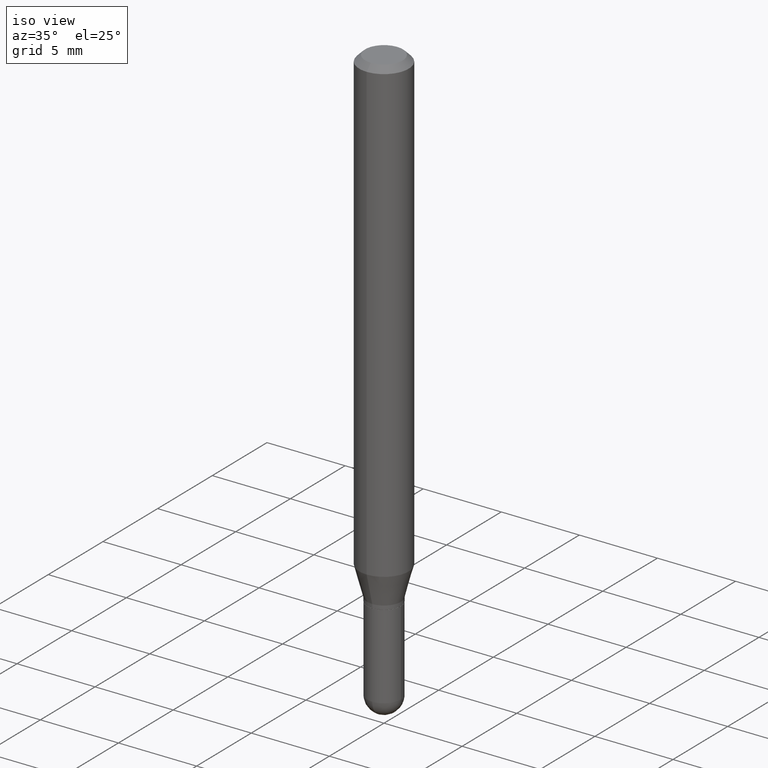
[diagram: clean part render]
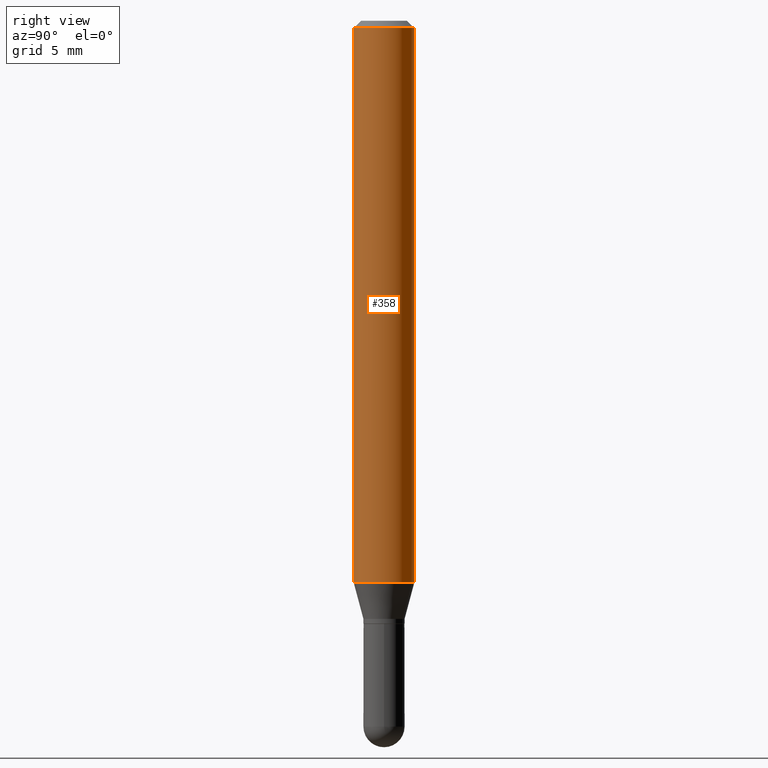
[diagram: tour spotlight — one face highlighted and labeled with its STEP entity id]
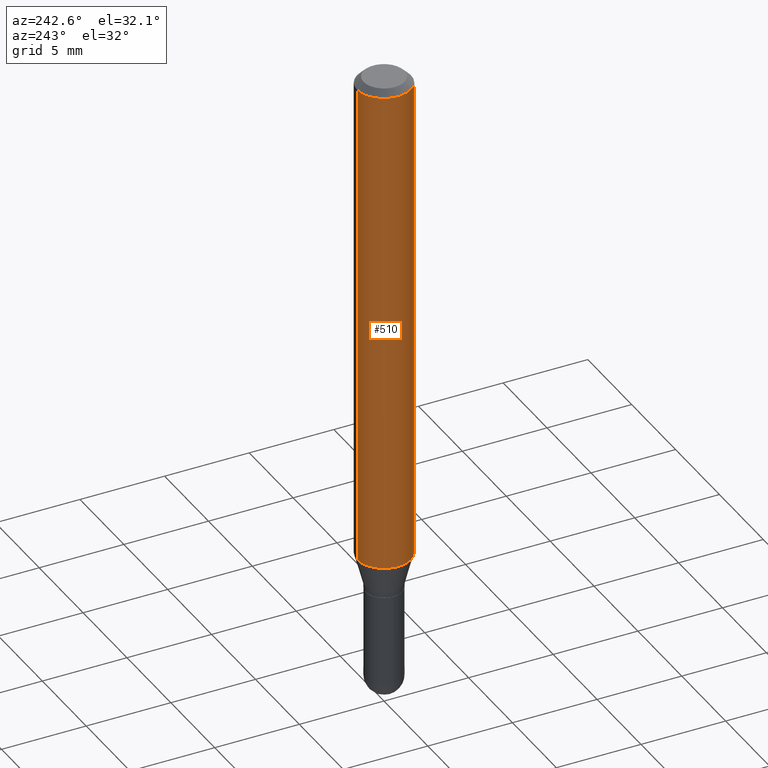
[diagram: tour spotlight — one face highlighted and labeled with its STEP entity id]
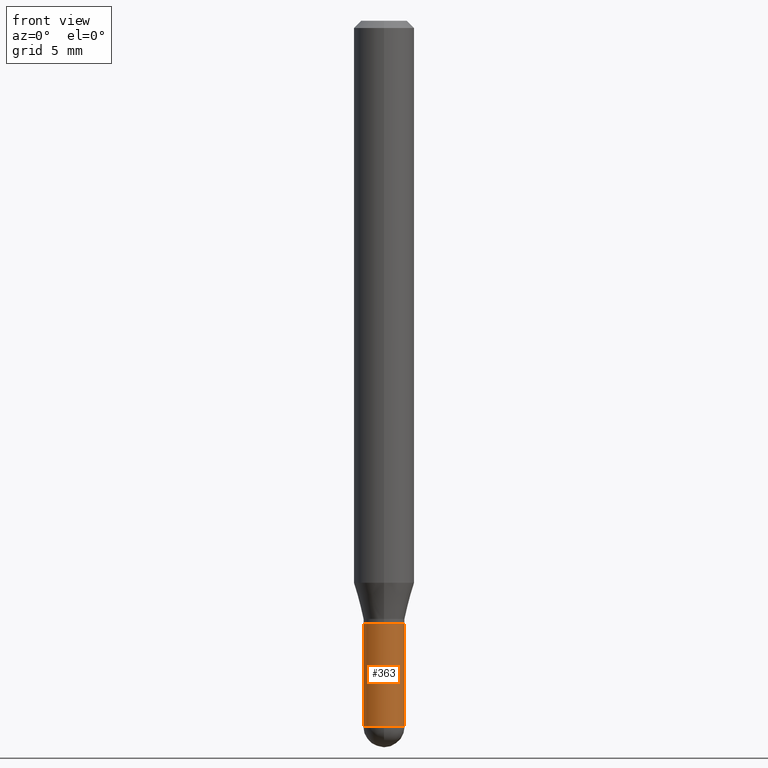
[diagram: tour spotlight — one face highlighted and labeled with its STEP entity id]
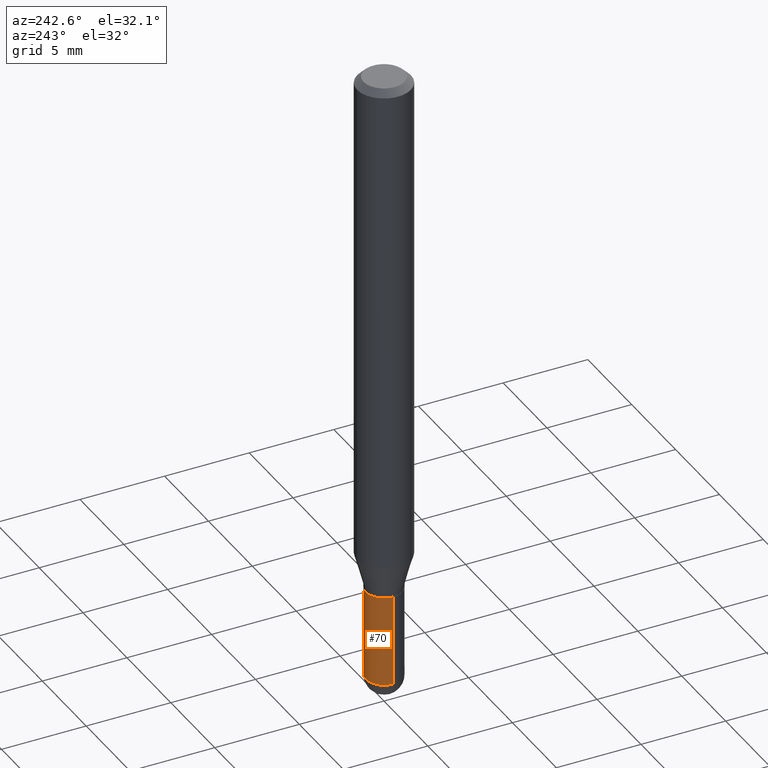
[diagram: tour spotlight — one face highlighted and labeled with its STEP entity id]
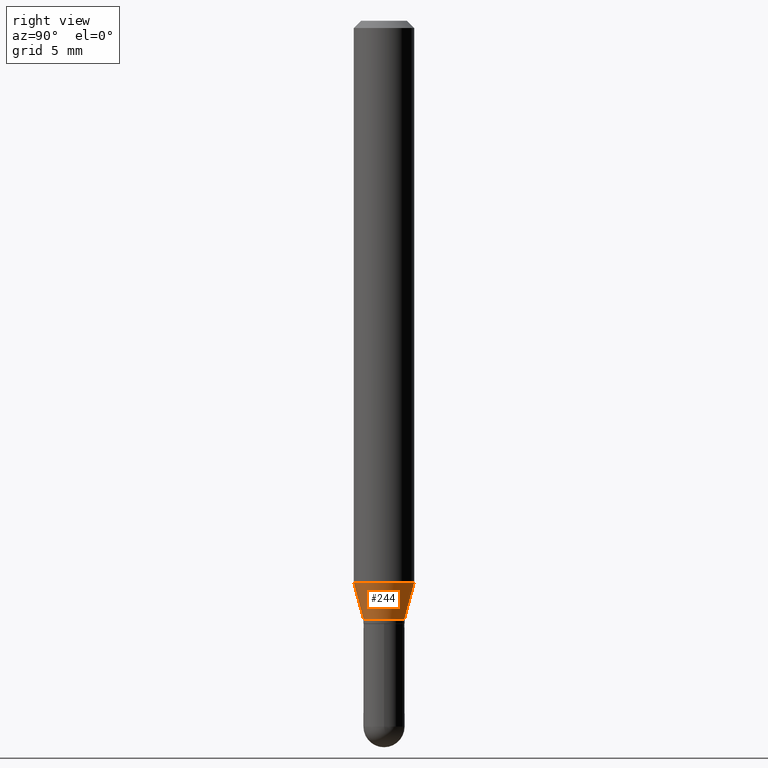
[diagram: tour spotlight — one face highlighted and labeled with its STEP entity id]
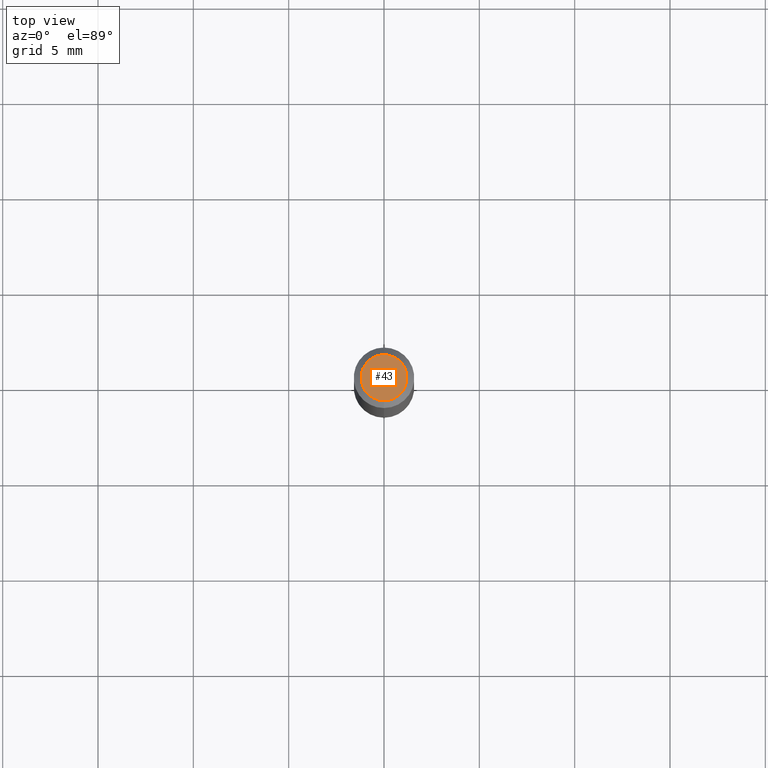
[diagram: tour spotlight — one face highlighted and labeled with its STEP entity id]
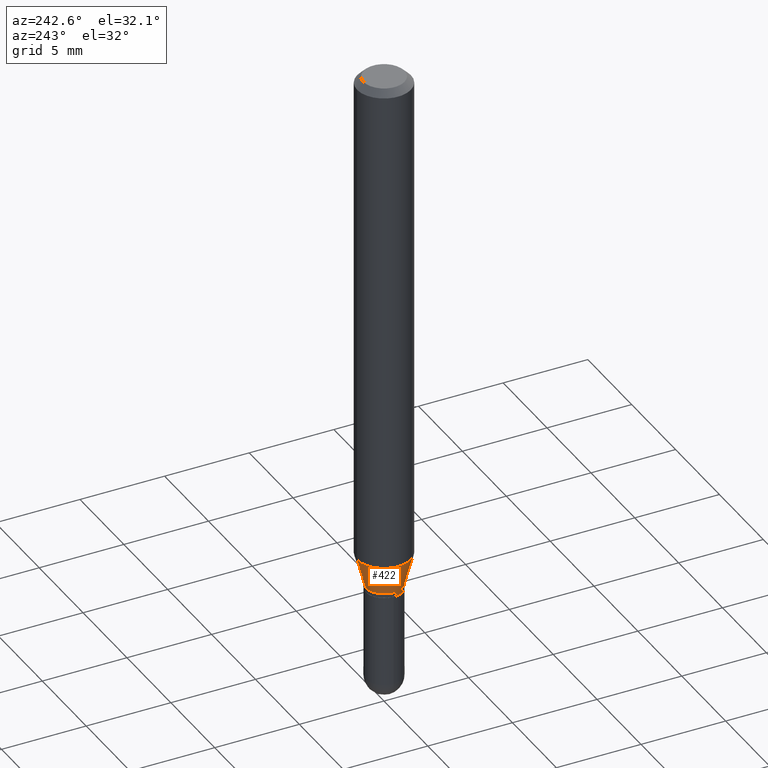
[diagram: tour spotlight — one face highlighted and labeled with its STEP entity id]
A machine part: a face-by-face anatomy tour. The part has 17 B-rep faces; the first image is the clean iso view, then the 7 largest visible faces are spotlighted one at a time (largest first), each with its STEP entity span.

Face 1 — right view, entity #358. In plain terms, the highlighted cylindrical surface (edge-blend (fillet) strip) has radius 1.5875 mm, axis along (-0, 0, 1).
Definition (entity closure, byte-faithful):
#19 = CIRCLE ( 'NONE', #351, 0.06250000000000000000 ) ;
#31 = DIRECTION ( 'NONE',  ( -2.445523810004875805E-29, 3.491402570242655808E-15, 1.000000000000000000 ) ) ;
#40 = CARTESIAN_POINT ( 'NONE',  ( -4.364351673553912750E-16, -0.06250000000000005551, -0.01500000000000011047 ) ) ;
#62 = DIRECTION ( 'NONE',  ( -2.445523810004875805E-29, 3.491402570242655808E-15, 1.000000000000000000 ) ) ;
#66 = CARTESIAN_POINT ( 'NONE',  ( 3.668285715007394160E-31, -5.237103855364098245E-17, -0.01500000000000032904 ) ) ;
#67 = EDGE_LOOP ( 'NONE', ( #399, #95, #440, #368 ) ) ;
#74 = CARTESIAN_POINT ( 'NONE',  ( 4.440892098500625669E-16, 0.06250000000000000000, -2.182126606401659880E-16 ) ) ;
#82 = CARTESIAN_POINT ( 'NONE',  ( -4.364351673553916201E-16, -0.06250000000000000000, 2.182126606401659880E-16 ) ) ;
#95 = ORIENTED_EDGE ( 'NONE', *, *, #112, .T. ) ;
#106 = LINE ( 'NONE', #74, #406 ) ;
#110 = CARTESIAN_POINT ( 'NONE',  ( -4.364351673553629746E-16, -0.06250000000000402456, -1.160358983848622350 ) ) ;
#112 = EDGE_CURVE ( 'NONE', #205, #366, #106, .T. ) ;
#136 = EDGE_CURVE ( 'NONE', #235, #366, #19, .T. ) ;
#147 = LINE ( 'NONE', #82, #320 ) ;
#150 = DIRECTION ( 'NONE',  ( -6.982962677686265922E-15, -1.000000000000000000, 4.370956789862821150E-15 ) ) ;
#179 = CIRCLE ( 'NONE', #256, 0.06250000000000000000 ) ;
#183 = DIRECTION ( 'NONE',  ( -2.445523810004875805E-29, 3.491402570242655808E-15, 1.000000000000000000 ) ) ;
#186 = CARTESIAN_POINT ( 'NONE',  ( 4.440892098500911138E-16, 0.06249999999999995143, -0.01500000000000054588 ) ) ;
#197 = VERTEX_POINT ( 'NONE', #110 ) ;
#199 = EDGE_CURVE ( 'NONE', #197, #205, #179, .T. ) ;
#205 = VERTEX_POINT ( 'NONE', #346 ) ;
#219 = DIRECTION ( 'NONE',  ( -2.445523810004875525E-29, 3.491402570242655808E-15, 1.000000000000000000 ) ) ;
#232 = EDGE_CURVE ( 'NONE', #197, #235, #147, .T. ) ;
#233 = AXIS2_PLACEMENT_3D ( 'NONE', #470, #62, #414 ) ;
#235 = VERTEX_POINT ( 'NONE', #40 ) ;
#237 = CARTESIAN_POINT ( 'NONE',  ( 2.837685523154869369E-29, -4.051280338613237522E-15, -1.160358983848622572 ) ) ;
#256 = AXIS2_PLACEMENT_3D ( 'NONE', #237, #183, #150 ) ;
#304 = DIRECTION ( 'NONE',  ( -6.982962677686265922E-15, -1.000000000000000000, 3.483106191921935554E-15 ) ) ;
#320 = VECTOR ( 'NONE', #468, 39.37007874015748143 ) ;
#346 = CARTESIAN_POINT ( 'NONE',  ( 4.440892098500912124E-16, 0.06249999999999598932, -1.160358983848622794 ) ) ;
#351 = AXIS2_PLACEMENT_3D ( 'NONE', #66, #31, #304 ) ;
#353 = FACE_OUTER_BOUND ( 'NONE', #67, .T. ) ;
#358 = ADVANCED_FACE ( 'NONE', ( #353 ), #393, .T. ) ;
#366 = VERTEX_POINT ( 'NONE', #186 ) ;
#368 = ORIENTED_EDGE ( 'NONE', *, *, #232, .F. ) ;
#393 = CYLINDRICAL_SURFACE ( 'NONE', #233, 0.06250000000000000000 ) ;
#399 = ORIENTED_EDGE ( 'NONE', *, *, #199, .T. ) ;
#406 = VECTOR ( 'NONE', #219, 39.37007874015748143 ) ;
#414 = DIRECTION ( 'NONE',  ( -6.982962677686265922E-15, -1.000000000000000000, 3.491402570242655808E-15 ) ) ;
#440 = ORIENTED_EDGE ( 'NONE', *, *, #136, .F. ) ;
#468 = DIRECTION ( 'NONE',  ( -2.445523810004875525E-29, 3.491402570242655808E-15, 1.000000000000000000 ) ) ;
#470 = CARTESIAN_POINT ( 'NONE',  ( 0.000000000000000000, 0.000000000000000000, 0.000000000000000000 ) ) ;

Face 2 — auxiliary view, entity #510. In plain terms, the highlighted cylindrical surface (edge-blend (fillet) strip) has radius 1.5875 mm, axis along (-0, 0, 1).
Definition (entity closure, byte-faithful):
#13 = EDGE_LOOP ( 'NONE', ( #193, #347, #443, #326 ) ) ;
#28 = AXIS2_PLACEMENT_3D ( 'NONE', #161, #156, #311 ) ;
#40 = CARTESIAN_POINT ( 'NONE',  ( -4.364351673553912750E-16, -0.06250000000000005551, -0.01500000000000011047 ) ) ;
#74 = CARTESIAN_POINT ( 'NONE',  ( 4.440892098500625669E-16, 0.06250000000000000000, -2.182126606401659880E-16 ) ) ;
#82 = CARTESIAN_POINT ( 'NONE',  ( -4.364351673553916201E-16, -0.06250000000000000000, 2.182126606401659880E-16 ) ) ;
#87 = EDGE_CURVE ( 'NONE', #366, #235, #451, .T. ) ;
#91 = DIRECTION ( 'NONE',  ( -2.445523810004875805E-29, 3.491402570242655808E-15, 1.000000000000000000 ) ) ;
#106 = LINE ( 'NONE', #74, #406 ) ;
#108 = AXIS2_PLACEMENT_3D ( 'NONE', #279, #91, #198 ) ;
#110 = CARTESIAN_POINT ( 'NONE',  ( -4.364351673553629746E-16, -0.06250000000000402456, -1.160358983848622350 ) ) ;
#112 = EDGE_CURVE ( 'NONE', #205, #366, #106, .T. ) ;
#122 = FACE_OUTER_BOUND ( 'NONE', #13, .T. ) ;
#147 = LINE ( 'NONE', #82, #320 ) ;
#156 = DIRECTION ( 'NONE',  ( -2.445523810004875805E-29, 3.491402570242655808E-15, 1.000000000000000000 ) ) ;
#161 = CARTESIAN_POINT ( 'NONE',  ( 2.837685523154869369E-29, -4.051280338613237522E-15, -1.160358983848622572 ) ) ;
#186 = CARTESIAN_POINT ( 'NONE',  ( 4.440892098500911138E-16, 0.06249999999999995143, -0.01500000000000054588 ) ) ;
#193 = ORIENTED_EDGE ( 'NONE', *, *, #112, .F. ) ;
#197 = VERTEX_POINT ( 'NONE', #110 ) ;
#198 = DIRECTION ( 'NONE',  ( -6.982962677686265922E-15, -1.000000000000000000, 3.491402570242655808E-15 ) ) ;
#205 = VERTEX_POINT ( 'NONE', #346 ) ;
#219 = DIRECTION ( 'NONE',  ( -2.445523810004875525E-29, 3.491402570242655808E-15, 1.000000000000000000 ) ) ;
#232 = EDGE_CURVE ( 'NONE', #197, #235, #147, .T. ) ;
#235 = VERTEX_POINT ( 'NONE', #40 ) ;
#257 = DIRECTION ( 'NONE',  ( -6.982962677686265922E-15, -1.000000000000000000, 3.483106191921935554E-15 ) ) ;
#262 = EDGE_CURVE ( 'NONE', #205, #197, #365, .T. ) ;
#279 = CARTESIAN_POINT ( 'NONE',  ( 0.000000000000000000, 0.000000000000000000, 0.000000000000000000 ) ) ;
#292 = AXIS2_PLACEMENT_3D ( 'NONE', #500, #460, #257 ) ;
#311 = DIRECTION ( 'NONE',  ( -6.982962677686265922E-15, -1.000000000000000000, 4.370956789862821150E-15 ) ) ;
#320 = VECTOR ( 'NONE', #468, 39.37007874015748143 ) ;
#326 = ORIENTED_EDGE ( 'NONE', *, *, #87, .F. ) ;
#346 = CARTESIAN_POINT ( 'NONE',  ( 4.440892098500912124E-16, 0.06249999999999598932, -1.160358983848622794 ) ) ;
#347 = ORIENTED_EDGE ( 'NONE', *, *, #262, .T. ) ;
#362 = CYLINDRICAL_SURFACE ( 'NONE', #108, 0.06250000000000000000 ) ;
#365 = CIRCLE ( 'NONE', #28, 0.06250000000000000000 ) ;
#366 = VERTEX_POINT ( 'NONE', #186 ) ;
#406 = VECTOR ( 'NONE', #219, 39.37007874015748143 ) ;
#443 = ORIENTED_EDGE ( 'NONE', *, *, #232, .T. ) ;
#451 = CIRCLE ( 'NONE', #292, 0.06250000000000000000 ) ;
#460 = DIRECTION ( 'NONE',  ( -2.445523810004875805E-29, 3.491402570242655808E-15, 1.000000000000000000 ) ) ;
#468 = DIRECTION ( 'NONE',  ( -2.445523810004875525E-29, 3.491402570242655808E-15, 1.000000000000000000 ) ) ;
#500 = CARTESIAN_POINT ( 'NONE',  ( 3.668285715007394160E-31, -5.237103855364098245E-17, -0.01500000000000032904 ) ) ;
#510 = ADVANCED_FACE ( 'NONE', ( #122 ), #362, .T. ) ;

Face 3 — front view, entity #363. In plain terms, the highlighted cylindrical surface (edge-blend (fillet) strip) has radius 1.0795 mm, axis along (-0, 0, 1).
Definition (entity closure, byte-faithful):
#11 = AXIS2_PLACEMENT_3D ( 'NONE', #321, #503, #117 ) ;
#12 = VERTEX_POINT ( 'NONE', #52 ) ;
#23 = CYLINDRICAL_SURFACE ( 'NONE', #218, 0.04250000000000000999 ) ;
#36 = VECTOR ( 'NONE', #314, 39.37007874015748143 ) ;
#52 = CARTESIAN_POINT ( 'NONE',  ( 0.04249999999999999611, -4.643670180661383298E-15, -1.245000000000000329 ) ) ;
#80 = DIRECTION ( 'NONE',  ( -2.445468806185136597E-29, 3.491481338843145583E-15, 1.000000000000000000 ) ) ;
#86 = CARTESIAN_POINT ( 'NONE',  ( 0.04250000000000000999, -2.967759138016664042E-16, 2.072375129713273202E-30 ) ) ;
#94 = ORIENTED_EDGE ( 'NONE', *, *, #185, .T. ) ;
#117 = DIRECTION ( 'NONE',  ( 1.000000000000000000, -6.982962677686265133E-15, 0.000000000000000000 ) ) ;
#159 = LINE ( 'NONE', #229, #475 ) ;
#163 = VERTEX_POINT ( 'NONE', #473 ) ;
#165 = CIRCLE ( 'NONE', #359, 0.04250000000000000999 ) ;
#174 = CIRCLE ( 'NONE', #11, 0.04249999999999999611 ) ;
#184 = ORIENTED_EDGE ( 'NONE', *, *, #327, .T. ) ;
#185 = EDGE_CURVE ( 'NONE', #394, #12, #390, .T. ) ;
#194 = VERTEX_POINT ( 'NONE', #278 ) ;
#216 = DIRECTION ( 'NONE',  ( -2.445468806185136597E-29, 3.491481338843145583E-15, 1.000000000000000000 ) ) ;
#218 = AXIS2_PLACEMENT_3D ( 'NONE', #495, #216, #309 ) ;
#220 = EDGE_LOOP ( 'NONE', ( #405, #184, #397, #94, #364 ) ) ;
#223 = DIRECTION ( 'NONE',  ( 1.000000000000000000, -6.982962677686273810E-15, 0.000000000000000000 ) ) ;
#225 = EDGE_CURVE ( 'NONE', #285, #12, #174, .T. ) ;
#229 = CARTESIAN_POINT ( 'NONE',  ( -0.04250000000000000999, 3.019806626980426500E-16, -2.090547413358335560E-30 ) ) ;
#276 = CARTESIAN_POINT ( 'NONE',  ( 0.04250000000000000999, -5.014640072913468189E-15, -1.457500000000000240 ) ) ;
#278 = CARTESIAN_POINT ( 'NONE',  ( -0.04250000000000000999, -4.415883496413759874E-15, -1.457500000000000240 ) ) ;
#280 = DIRECTION ( 'NONE',  ( -2.445468806185136597E-29, 3.491481338843145583E-15, 1.000000000000000000 ) ) ;
#285 = VERTEX_POINT ( 'NONE', #357 ) ;
#302 = CIRCLE ( 'NONE', #376, 0.04250000000000000999 ) ;
#309 = DIRECTION ( 'NONE',  ( 1.000000000000000000, -6.982962677686266711E-15, 4.876176775795935793E-29 ) ) ;
#310 = EDGE_CURVE ( 'NONE', #194, #285, #159, .T. ) ;
#313 = DIRECTION ( 'NONE',  ( -2.445468806185136877E-29, 3.491481338843145188E-15, 1.000000000000000000 ) ) ;
#314 = DIRECTION ( 'NONE',  ( -2.445468806185136877E-29, 3.491481338843145188E-15, 1.000000000000000000 ) ) ;
#318 = CARTESIAN_POINT ( 'NONE',  ( 3.564270785014837509E-29, -5.088834051363884851E-15, -1.457500000000000240 ) ) ;
#321 = CARTESIAN_POINT ( 'NONE',  ( 3.044608663700495534E-29, -4.346894266859716647E-15, -1.245000000000000329 ) ) ;
#327 = EDGE_CURVE ( 'NONE', #194, #163, #302, .T. ) ;
#357 = CARTESIAN_POINT ( 'NONE',  ( -0.04249999999999999611, -4.415883496413758296E-15, -1.245000000000000329 ) ) ;
#359 = AXIS2_PLACEMENT_3D ( 'NONE', #318, #80, #474 ) ;
#363 = ADVANCED_FACE ( 'NONE', ( #378 ), #23, .T. ) ;
#364 = ORIENTED_EDGE ( 'NONE', *, *, #225, .F. ) ;
#376 = AXIS2_PLACEMENT_3D ( 'NONE', #438, #280, #223 ) ;
#378 = FACE_OUTER_BOUND ( 'NONE', #220, .T. ) ;
#380 = EDGE_CURVE ( 'NONE', #163, #394, #165, .T. ) ;
#390 = LINE ( 'NONE', #86, #36 ) ;
#394 = VERTEX_POINT ( 'NONE', #276 ) ;
#397 = ORIENTED_EDGE ( 'NONE', *, *, #380, .T. ) ;
#405 = ORIENTED_EDGE ( 'NONE', *, *, #310, .F. ) ;
#438 = CARTESIAN_POINT ( 'NONE',  ( 3.564270785014837509E-29, -5.088834051363884851E-15, -1.457500000000000240 ) ) ;
#473 = CARTESIAN_POINT ( 'NONE',  ( -2.967759138016310534E-16, -0.04250000000000514477, -1.457500000000000018 ) ) ;
#474 = DIRECTION ( 'NONE',  ( 1.000000000000000000, -6.982962677686273810E-15, 0.000000000000000000 ) ) ;
#475 = VECTOR ( 'NONE', #313, 39.37007874015748143 ) ;
#495 = CARTESIAN_POINT ( 'NONE',  ( 0.000000000000000000, 0.000000000000000000, 0.000000000000000000 ) ) ;
#503 = DIRECTION ( 'NONE',  ( -2.445468806185136597E-29, 3.491481338843145583E-15, 1.000000000000000000 ) ) ;

Face 4 — auxiliary view, entity #70. In plain terms, the highlighted cylindrical surface (edge-blend (fillet) strip) has radius 1.0795 mm, axis along (-0, 0, 1).
Definition (entity closure, byte-faithful):
#2 = CARTESIAN_POINT ( 'NONE',  ( 3.044608663700495534E-29, -4.346894266859716647E-15, -1.245000000000000329 ) ) ;
#12 = VERTEX_POINT ( 'NONE', #52 ) ;
#17 = ORIENTED_EDGE ( 'NONE', *, *, #310, .T. ) ;
#24 = CARTESIAN_POINT ( 'NONE',  ( 0.000000000000000000, 0.000000000000000000, 0.000000000000000000 ) ) ;
#34 = DIRECTION ( 'NONE',  ( 1.000000000000000000, -6.982962677686265133E-15, 0.000000000000000000 ) ) ;
#36 = VECTOR ( 'NONE', #314, 39.37007874015748143 ) ;
#52 = CARTESIAN_POINT ( 'NONE',  ( 0.04249999999999999611, -4.643670180661383298E-15, -1.245000000000000329 ) ) ;
#58 = DIRECTION ( 'NONE',  ( 1.000000000000000000, -6.982962677686273810E-15, 0.000000000000000000 ) ) ;
#65 = CIRCLE ( 'NONE', #247, 0.04250000000000000999 ) ;
#70 = ADVANCED_FACE ( 'NONE', ( #263 ), #375, .T. ) ;
#79 = ORIENTED_EDGE ( 'NONE', *, *, #185, .F. ) ;
#86 = CARTESIAN_POINT ( 'NONE',  ( 0.04250000000000000999, -2.967759138016664042E-16, 2.072375129713273202E-30 ) ) ;
#104 = DIRECTION ( 'NONE',  ( 1.000000000000000000, -6.982962677686273810E-15, 0.000000000000000000 ) ) ;
#127 = AXIS2_PLACEMENT_3D ( 'NONE', #182, #137, #104 ) ;
#137 = DIRECTION ( 'NONE',  ( -2.445468806185136597E-29, 3.491481338843145583E-15, 1.000000000000000000 ) ) ;
#154 = EDGE_CURVE ( 'NONE', #355, #194, #164, .T. ) ;
#159 = LINE ( 'NONE', #229, #475 ) ;
#164 = CIRCLE ( 'NONE', #127, 0.04250000000000000999 ) ;
#182 = CARTESIAN_POINT ( 'NONE',  ( 3.564270785014837509E-29, -5.088834051363884851E-15, -1.457500000000000240 ) ) ;
#185 = EDGE_CURVE ( 'NONE', #394, #12, #390, .T. ) ;
#194 = VERTEX_POINT ( 'NONE', #278 ) ;
#229 = CARTESIAN_POINT ( 'NONE',  ( -0.04250000000000000999, 3.019806626980426500E-16, -2.090547413358335560E-30 ) ) ;
#231 = CARTESIAN_POINT ( 'NONE',  ( 3.019806626980785432E-16, 0.04249999999999495154, -1.457500000000000462 ) ) ;
#247 = AXIS2_PLACEMENT_3D ( 'NONE', #290, #323, #58 ) ;
#259 = DIRECTION ( 'NONE',  ( -2.445468806185136597E-29, 3.491481338843145583E-15, 1.000000000000000000 ) ) ;
#263 = FACE_OUTER_BOUND ( 'NONE', #384, .T. ) ;
#267 = ORIENTED_EDGE ( 'NONE', *, *, #492, .T. ) ;
#276 = CARTESIAN_POINT ( 'NONE',  ( 0.04250000000000000999, -5.014640072913468189E-15, -1.457500000000000240 ) ) ;
#278 = CARTESIAN_POINT ( 'NONE',  ( -0.04250000000000000999, -4.415883496413759874E-15, -1.457500000000000240 ) ) ;
#285 = VERTEX_POINT ( 'NONE', #357 ) ;
#290 = CARTESIAN_POINT ( 'NONE',  ( 3.564270785014837509E-29, -5.088834051363884851E-15, -1.457500000000000240 ) ) ;
#310 = EDGE_CURVE ( 'NONE', #194, #285, #159, .T. ) ;
#313 = DIRECTION ( 'NONE',  ( -2.445468806185136877E-29, 3.491481338843145188E-15, 1.000000000000000000 ) ) ;
#314 = DIRECTION ( 'NONE',  ( -2.445468806185136877E-29, 3.491481338843145188E-15, 1.000000000000000000 ) ) ;
#319 = AXIS2_PLACEMENT_3D ( 'NONE', #24, #259, #416 ) ;
#323 = DIRECTION ( 'NONE',  ( -2.445468806185136597E-29, 3.491481338843145583E-15, 1.000000000000000000 ) ) ;
#332 = ORIENTED_EDGE ( 'NONE', *, *, #457, .F. ) ;
#355 = VERTEX_POINT ( 'NONE', #231 ) ;
#357 = CARTESIAN_POINT ( 'NONE',  ( -0.04249999999999999611, -4.415883496413758296E-15, -1.245000000000000329 ) ) ;
#375 = CYLINDRICAL_SURFACE ( 'NONE', #319, 0.04250000000000000999 ) ;
#384 = EDGE_LOOP ( 'NONE', ( #418, #17, #332, #79, #267 ) ) ;
#389 = DIRECTION ( 'NONE',  ( -2.445468806185136597E-29, 3.491481338843145583E-15, 1.000000000000000000 ) ) ;
#390 = LINE ( 'NONE', #86, #36 ) ;
#394 = VERTEX_POINT ( 'NONE', #276 ) ;
#401 = AXIS2_PLACEMENT_3D ( 'NONE', #2, #389, #34 ) ;
#416 = DIRECTION ( 'NONE',  ( 1.000000000000000000, -6.982962677686266711E-15, 4.876176775795935793E-29 ) ) ;
#418 = ORIENTED_EDGE ( 'NONE', *, *, #154, .T. ) ;
#428 = CIRCLE ( 'NONE', #401, 0.04249999999999999611 ) ;
#457 = EDGE_CURVE ( 'NONE', #12, #285, #428, .T. ) ;
#475 = VECTOR ( 'NONE', #313, 39.37007874015748143 ) ;
#492 = EDGE_CURVE ( 'NONE', #394, #355, #65, .T. ) ;

Face 5 — right view, entity #244. In plain terms, the highlighted conical surface has half-angle 15 deg.
Definition (entity closure, byte-faithful):
#4 = DIRECTION ( 'NONE',  ( -2.445523810004875805E-29, 3.491402570242655808E-15, 1.000000000000000000 ) ) ;
#25 = CARTESIAN_POINT ( 'NONE',  ( -2.967759138016355400E-16, -0.04250000000000423578, -1.235000000000000098 ) ) ;
#55 = VECTOR ( 'NONE', #307, 39.37007874015748854 ) ;
#76 = DIRECTION ( 'NONE',  ( -2.445523810004875805E-29, 3.491402570242655808E-15, 1.000000000000000000 ) ) ;
#77 = EDGE_CURVE ( 'NONE', #115, #197, #340, .T. ) ;
#84 = CONICAL_SURFACE ( 'NONE', #241, 0.04249999999999991979, 0.2617993877991497409 ) ;
#110 = CARTESIAN_POINT ( 'NONE',  ( -4.364351673553629746E-16, -0.06250000000000402456, -1.160358983848622350 ) ) ;
#115 = VERTEX_POINT ( 'NONE', #25 ) ;
#150 = DIRECTION ( 'NONE',  ( -6.982962677686265922E-15, -1.000000000000000000, 4.370956789862821150E-15 ) ) ;
#157 = CIRCLE ( 'NONE', #420, 0.04249999999999991979 ) ;
#179 = CIRCLE ( 'NONE', #256, 0.06250000000000000000 ) ;
#183 = DIRECTION ( 'NONE',  ( -2.445523810004875805E-29, 3.491402570242655808E-15, 1.000000000000000000 ) ) ;
#195 = CARTESIAN_POINT ( 'NONE',  ( 3.019806626980721830E-16, 0.04249999999999561073, -1.235000000000000542 ) ) ;
#197 = VERTEX_POINT ( 'NONE', #110 ) ;
#199 = EDGE_CURVE ( 'NONE', #197, #205, #179, .T. ) ;
#205 = VERTEX_POINT ( 'NONE', #346 ) ;
#213 = ORIENTED_EDGE ( 'NONE', *, *, #199, .F. ) ;
#224 = DIRECTION ( 'NONE',  ( -6.982962677686266711E-15, -1.000000000000000000, 6.427877632151220009E-15 ) ) ;
#228 = DIRECTION ( 'NONE',  ( 1.839019923739596765E-15, 0.2588190451025244587, 0.9659258262890673130 ) ) ;
#230 = EDGE_LOOP ( 'NONE', ( #360, #289, #213, #447 ) ) ;
#237 = CARTESIAN_POINT ( 'NONE',  ( 2.837685523154869369E-29, -4.051280338613237522E-15, -1.160358983848622572 ) ) ;
#241 = AXIS2_PLACEMENT_3D ( 'NONE', #395, #76, #224 ) ;
#244 = ADVANCED_FACE ( 'NONE', ( #266 ), #84, .T. ) ;
#256 = AXIS2_PLACEMENT_3D ( 'NONE', #237, #183, #150 ) ;
#266 = FACE_OUTER_BOUND ( 'NONE', #230, .T. ) ;
#277 = CARTESIAN_POINT ( 'NONE',  ( 3.020221905356022886E-29, -4.311882174249681034E-15, -1.235000000000000320 ) ) ;
#289 = ORIENTED_EDGE ( 'NONE', *, *, #452, .T. ) ;
#296 = EDGE_CURVE ( 'NONE', #115, #478, #157, .T. ) ;
#307 = DIRECTION ( 'NONE',  ( -1.807323732225326589E-15, -0.2588190451025176864, 0.9659258262890690894 ) ) ;
#333 = CARTESIAN_POINT ( 'NONE',  ( 3.730349362740815744E-16, 0.04249999999999561073, -1.235000000000000542 ) ) ;
#340 = LINE ( 'NONE', #425, #55 ) ;
#346 = CARTESIAN_POINT ( 'NONE',  ( 4.440892098500912124E-16, 0.06249999999999598932, -1.160358983848622794 ) ) ;
#360 = ORIENTED_EDGE ( 'NONE', *, *, #296, .T. ) ;
#395 = CARTESIAN_POINT ( 'NONE',  ( 3.020221905356022886E-29, -4.311882174249681034E-15, -1.235000000000000320 ) ) ;
#420 = AXIS2_PLACEMENT_3D ( 'NONE', #277, #4, #477 ) ;
#425 = CARTESIAN_POINT ( 'NONE',  ( -2.967759138016355400E-16, -0.04250000000000423578, -1.235000000000000098 ) ) ;
#431 = LINE ( 'NONE', #195, #483 ) ;
#447 = ORIENTED_EDGE ( 'NONE', *, *, #77, .F. ) ;
#452 = EDGE_CURVE ( 'NONE', #478, #205, #431, .T. ) ;
#477 = DIRECTION ( 'NONE',  ( -6.982962677686266711E-15, -1.000000000000000000, 6.427877632151220009E-15 ) ) ;
#478 = VERTEX_POINT ( 'NONE', #333 ) ;
#483 = VECTOR ( 'NONE', #228, 39.37007874015748143 ) ;

Face 6 — top view, entity #43. In plain terms, the highlighted planar face has unit normal (0, -0, -1).
Definition (entity closure, byte-faithful):
#3 = CIRCLE ( 'NONE', #465, 0.04749999999999999362 ) ;
#8 = EDGE_LOOP ( 'NONE', ( #188, #356 ) ) ;
#10 = AXIS2_PLACEMENT_3D ( 'NONE', #204, #92, #242 ) ;
#43 = ADVANCED_FACE ( 'NONE', ( #246 ), #371, .F. ) ;
#53 = EDGE_CURVE ( 'NONE', #130, #249, #301, .T. ) ;
#64 = AXIS2_PLACEMENT_3D ( 'NONE', #379, #455, #338 ) ;
#92 = DIRECTION ( 'NONE',  ( 2.445523810004875525E-29, -3.491402570242655808E-15, -1.000000000000000000 ) ) ;
#123 = DIRECTION ( 'NONE',  ( -6.982962677686266711E-15, -1.000000000000000000, 3.491402570242656203E-15 ) ) ;
#130 = VERTEX_POINT ( 'NONE', #141 ) ;
#141 = CARTESIAN_POINT ( 'NONE',  ( 3.840629472727447874E-16, 0.04749999999999999362, -4.939923113072091241E-16 ) ) ;
#188 = ORIENTED_EDGE ( 'NONE', *, *, #53, .T. ) ;
#204 = CARTESIAN_POINT ( 'NONE',  ( 3.316907271900976096E-16, 0.04749999999999999362, -3.299169666968676133E-16 ) ) ;
#242 = DIRECTION ( 'NONE',  ( 6.982962677686265922E-15, 1.000000000000000000, -3.491402570242655808E-15 ) ) ;
#246 = FACE_OUTER_BOUND ( 'NONE', #8, .T. ) ;
#249 = VERTEX_POINT ( 'NONE', #506 ) ;
#274 = DIRECTION ( 'NONE',  ( -2.445523810004875805E-29, 3.491402570242655808E-15, 1.000000000000000000 ) ) ;
#301 = CIRCLE ( 'NONE', #64, 0.04749999999999999362 ) ;
#306 = EDGE_CURVE ( 'NONE', #249, #130, #3, .T. ) ;
#338 = DIRECTION ( 'NONE',  ( -6.982962677686266711E-15, -1.000000000000000000, 3.491402570242656203E-15 ) ) ;
#348 = CARTESIAN_POINT ( 'NONE',  ( 8.025003237586904875E-45, -1.145706159771991361E-30, -3.281506892206829722E-16 ) ) ;
#356 = ORIENTED_EDGE ( 'NONE', *, *, #306, .T. ) ;
#371 = PLANE ( 'NONE',  #10 ) ;
#379 = CARTESIAN_POINT ( 'NONE',  ( 8.025003237586904875E-45, -1.145706159771991361E-30, -3.281506892206829722E-16 ) ) ;
#455 = DIRECTION ( 'NONE',  ( -2.445523810004875805E-29, 3.491402570242655808E-15, 1.000000000000000000 ) ) ;
#465 = AXIS2_PLACEMENT_3D ( 'NONE', #348, #274, #123 ) ;
#506 = CARTESIAN_POINT ( 'NONE',  ( -3.773273898774340269E-16, -0.04749999999999999362, -1.623090671341567957E-16 ) ) ;

Face 7 — auxiliary view, entity #422. In plain terms, the highlighted conical surface has half-angle 15 deg.
Definition (entity closure, byte-faithful):
#6 = EDGE_LOOP ( 'NONE', ( #485, #388, #85, #96 ) ) ;
#25 = CARTESIAN_POINT ( 'NONE',  ( -2.967759138016355400E-16, -0.04250000000000423578, -1.235000000000000098 ) ) ;
#28 = AXIS2_PLACEMENT_3D ( 'NONE', #161, #156, #311 ) ;
#55 = VECTOR ( 'NONE', #307, 39.37007874015748854 ) ;
#75 = CONICAL_SURFACE ( 'NONE', #436, 0.04249999999999991979, 0.2617993877991497409 ) ;
#77 = EDGE_CURVE ( 'NONE', #115, #197, #340, .T. ) ;
#85 = ORIENTED_EDGE ( 'NONE', *, *, #77, .T. ) ;
#96 = ORIENTED_EDGE ( 'NONE', *, *, #262, .F. ) ;
#110 = CARTESIAN_POINT ( 'NONE',  ( -4.364351673553629746E-16, -0.06250000000000402456, -1.160358983848622350 ) ) ;
#115 = VERTEX_POINT ( 'NONE', #25 ) ;
#120 = DIRECTION ( 'NONE',  ( -6.982962677686266711E-15, -1.000000000000000000, 6.427877632151220009E-15 ) ) ;
#143 = AXIS2_PLACEMENT_3D ( 'NONE', #272, #512, #120 ) ;
#156 = DIRECTION ( 'NONE',  ( -2.445523810004875805E-29, 3.491402570242655808E-15, 1.000000000000000000 ) ) ;
#161 = CARTESIAN_POINT ( 'NONE',  ( 2.837685523154869369E-29, -4.051280338613237522E-15, -1.160358983848622572 ) ) ;
#195 = CARTESIAN_POINT ( 'NONE',  ( 3.019806626980721830E-16, 0.04249999999999561073, -1.235000000000000542 ) ) ;
#197 = VERTEX_POINT ( 'NONE', #110 ) ;
#205 = VERTEX_POINT ( 'NONE', #346 ) ;
#222 = FACE_OUTER_BOUND ( 'NONE', #6, .T. ) ;
#228 = DIRECTION ( 'NONE',  ( 1.839019923739596765E-15, 0.2588190451025244587, 0.9659258262890673130 ) ) ;
#238 = DIRECTION ( 'NONE',  ( -6.982962677686266711E-15, -1.000000000000000000, 6.427877632151220009E-15 ) ) ;
#262 = EDGE_CURVE ( 'NONE', #205, #197, #365, .T. ) ;
#272 = CARTESIAN_POINT ( 'NONE',  ( 3.020221905356022886E-29, -4.311882174249681034E-15, -1.235000000000000320 ) ) ;
#288 = EDGE_CURVE ( 'NONE', #478, #115, #385, .T. ) ;
#307 = DIRECTION ( 'NONE',  ( -1.807323732225326589E-15, -0.2588190451025176864, 0.9659258262890690894 ) ) ;
#311 = DIRECTION ( 'NONE',  ( -6.982962677686265922E-15, -1.000000000000000000, 4.370956789862821150E-15 ) ) ;
#333 = CARTESIAN_POINT ( 'NONE',  ( 3.730349362740815744E-16, 0.04249999999999561073, -1.235000000000000542 ) ) ;
#340 = LINE ( 'NONE', #425, #55 ) ;
#346 = CARTESIAN_POINT ( 'NONE',  ( 4.440892098500912124E-16, 0.06249999999999598932, -1.160358983848622794 ) ) ;
#350 = CARTESIAN_POINT ( 'NONE',  ( 3.020221905356022886E-29, -4.311882174249681034E-15, -1.235000000000000320 ) ) ;
#365 = CIRCLE ( 'NONE', #28, 0.06250000000000000000 ) ;
#385 = CIRCLE ( 'NONE', #143, 0.04249999999999991979 ) ;
#388 = ORIENTED_EDGE ( 'NONE', *, *, #288, .T. ) ;
#422 = ADVANCED_FACE ( 'NONE', ( #222 ), #75, .T. ) ;
#425 = CARTESIAN_POINT ( 'NONE',  ( -2.967759138016355400E-16, -0.04250000000000423578, -1.235000000000000098 ) ) ;
#431 = LINE ( 'NONE', #195, #483 ) ;
#436 = AXIS2_PLACEMENT_3D ( 'NONE', #350, #441, #238 ) ;
#441 = DIRECTION ( 'NONE',  ( -2.445523810004875805E-29, 3.491402570242655808E-15, 1.000000000000000000 ) ) ;
#452 = EDGE_CURVE ( 'NONE', #478, #205, #431, .T. ) ;
#478 = VERTEX_POINT ( 'NONE', #333 ) ;
#483 = VECTOR ( 'NONE', #228, 39.37007874015748143 ) ;
#485 = ORIENTED_EDGE ( 'NONE', *, *, #452, .F. ) ;
#512 = DIRECTION ( 'NONE',  ( -2.445523810004875805E-29, 3.491402570242655808E-15, 1.000000000000000000 ) ) ;